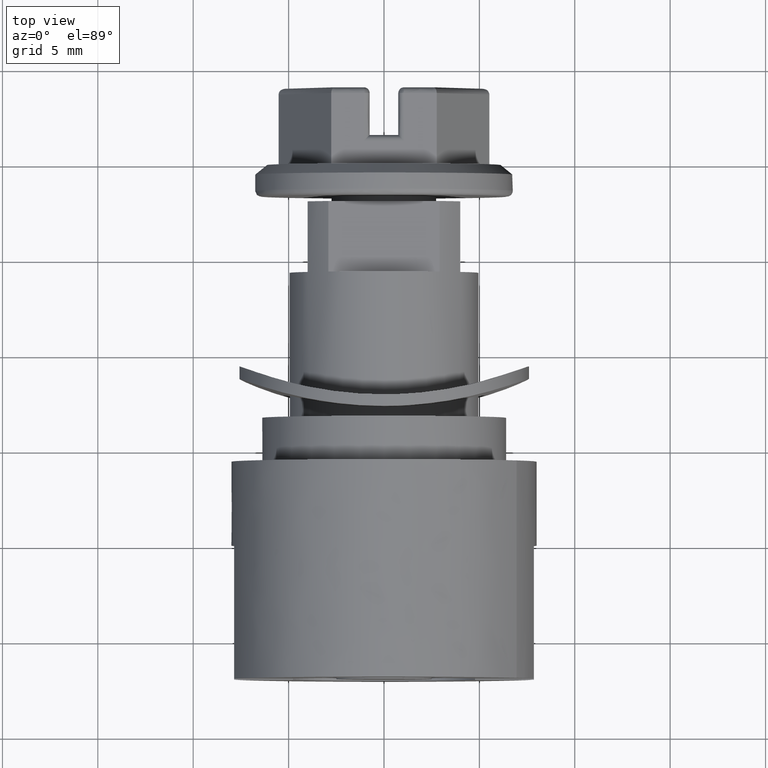
[diagram: clean part render]
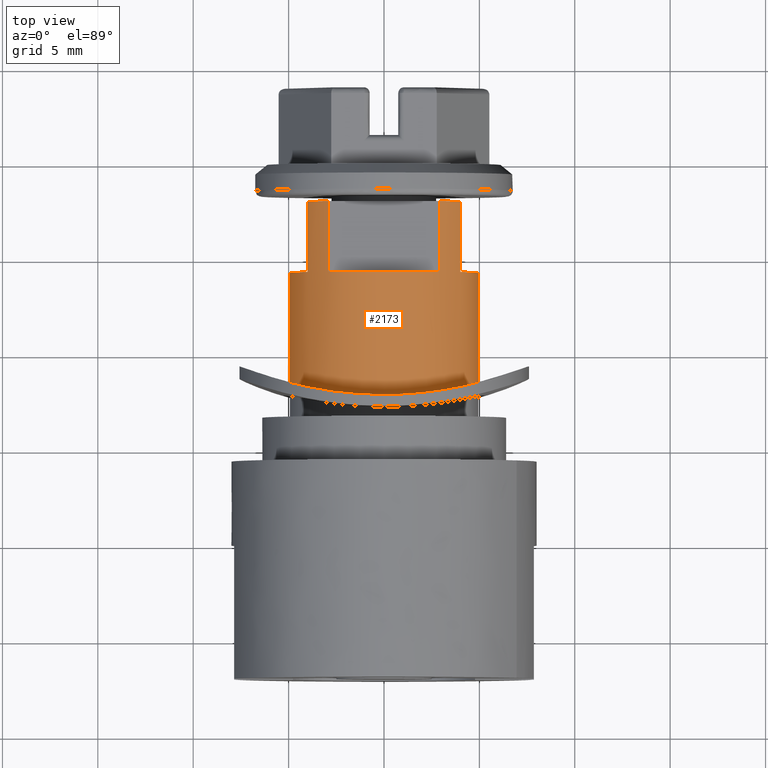
[diagram: same view with one face highlighted and labeled with its STEP entity id]
A machine part, top view. The second image highlights one B-rep face of the part: STEP entity #2173.
In plain terms, the highlighted face is a freeform B-spline surface patch.
Its self-contained STEP definition (entity closure, byte-faithful):
#1953=CARTESIAN_POINT('',(4.948303961655311,18.255000838738340,-0.129575883432199));
#1954=CARTESIAN_POINT('',(5.077879861095710,18.255000838738333,4.818728078223113));
#1955=CARTESIAN_POINT('',(0.129575899440400,18.255000838738340,4.948303977663512));
#1956=CARTESIAN_POINT('',(-4.818728062214912,18.255000838738333,5.077879877103912));
#1957=CARTESIAN_POINT('',(-4.948303961655311,18.255000838738340,0.129575915448601));
#1958=CARTESIAN_POINT('',(4.948303961655311,7.538626520212205,-0.129575883432199));
#1959=CARTESIAN_POINT('',(5.077879861095710,7.538626520212205,4.818728078223113));
#1960=CARTESIAN_POINT('',(0.129575899440400,7.538626520212205,4.948303977663512));
#1961=CARTESIAN_POINT('',(-4.818728062214912,7.538626520212205,5.077879877103912));
#1962=CARTESIAN_POINT('',(-4.948303961655311,7.538626520212205,0.129575915448601));
#1970=(BOUNDED_SURFACE()B_SPLINE_SURFACE(2,1,((#1953,#1958),(#1954,#1959),(#1955,#1960),(#1956,#1961),(#1957,#1962)),.UNSPECIFIED.,.F.,.F.,.U.)B_SPLINE_SURFACE_WITH_KNOTS((3,2,3),(2,2),(0.0,8.201428871487584,16.402857742975169),(0.0,10.716374318526130),.UNSPECIFIED.)GEOMETRIC_REPRESENTATION_ITEM()RATIONAL_B_SPLINE_SURFACE(((1.0,1.0),(0.707106781186548,0.707106781186548),(1.0,1.0),(0.707106781186548,0.707106781186548),(1.0,1.0)))REPRESENTATION_ITEM('')SURFACE());
#1971=CARTESIAN_POINT('',(4.948303969794191,14.300000679224910,-0.129576105088257));
#1972=VERTEX_POINT('',#1971);
#1973=CARTESIAN_POINT('',(4.000000171738055,14.300000679213699,2.915904787557670));
#1974=VERTEX_POINT('',#1973);
#1975=CARTESIAN_POINT('',(4.948303969794191,14.300000679224915,-0.129576105088257));
#1976=CARTESIAN_POINT('',(4.992404200035924,14.300000679213738,1.554537897813703));
#1977=CARTESIAN_POINT('',(4.000000171738055,14.300000679213699,2.915904787557670));
#1985=(BOUNDED_CURVE()B_SPLINE_CURVE(2,(#1975,#1976,#1977),.UNSPECIFIED.,.F.,.U.)B_SPLINE_CURVE_WITH_KNOTS((3,3),(0.479909785443835,1.0),.UNSPECIFIED.)CURVE()GEOMETRIC_REPRESENTATION_ITEM()RATIONAL_B_SPLINE_CURVE((0.904195327630247,0.900184706297299,1.0))REPRESENTATION_ITEM(''));
#1986=EDGE_CURVE('',#1972,#1974,#1985,.T.);
#1987=ORIENTED_EDGE('',*,*,#1986,.T.);
#1988=CARTESIAN_POINT('',(4.000000189989706,18.000000854954251,2.915904800862690));
#1989=VERTEX_POINT('',#1988);
#1990=CARTESIAN_POINT('',(4.000000189989706,18.000000854954251,2.915904800862690));
#1991=CARTESIAN_POINT('',(4.000000171738055,14.300000679213699,2.915904787557670));
#1992=QUASI_UNIFORM_CURVE('',1,(#1990,#1991),.UNSPECIFIED.,.F.,.U.);
#1993=EDGE_CURVE('',#1989,#1974,#1992,.T.);
#1994=ORIENTED_EDGE('',*,*,#1993,.F.);
#1995=CARTESIAN_POINT('',(2.915904800862700,18.000000854954251,4.000000189989706));
#1996=VERTEX_POINT('',#1995);
#1997=CARTESIAN_POINT('',(4.000000189989706,18.000000854954251,2.915904800862690));
#1998=CARTESIAN_POINT('',(3.542920595100084,18.000000854954251,3.542920595100078));
#1999=CARTESIAN_POINT('',(2.915904800862700,18.000000854954251,4.000000189989706));
#2007=(BOUNDED_CURVE()B_SPLINE_CURVE(2,(#1997,#1998,#1999),.UNSPECIFIED.,.F.,.U.)CURVE()GEOMETRIC_REPRESENTATION_ITEM()QUASI_UNIFORM_CURVE()RATIONAL_B_SPLINE_CURVE((1.0,0.987935976671970,1.0))REPRESENTATION_ITEM(''));
#2008=EDGE_CURVE('',#1989,#1996,#2007,.T.);
#2009=ORIENTED_EDGE('',*,*,#2008,.T.);
#2010=CARTESIAN_POINT('',(2.915904800862700,14.300000679213779,4.000000189989706));
#2011=VERTEX_POINT('',#2010);
#2012=CARTESIAN_POINT('',(2.915904800862700,18.000000854954251,4.000000189989706));
#2013=CARTESIAN_POINT('',(2.915904800862700,14.300000679213779,4.000000189989706));
#2014=QUASI_UNIFORM_CURVE('',1,(#2012,#2013),.UNSPECIFIED.,.F.,.U.);
#2015=EDGE_CURVE('',#1996,#2011,#2014,.T.);
#2016=ORIENTED_EDGE('',*,*,#2015,.T.);
#2017=CARTESIAN_POINT('',(-2.915904768471935,14.300000679213699,4.000000189989706));
#2018=VERTEX_POINT('',#2017);
#2019=CARTESIAN_POINT('',(2.915904800862704,14.300000679213779,4.000000189989705));
#2020=CARTESIAN_POINT('',(0.000000016195385,14.300000679213788,6.125625279145473));
#2021=CARTESIAN_POINT('',(-2.915904768471935,14.300000679213699,4.000000189989706));
#2029=(BOUNDED_CURVE()B_SPLINE_CURVE(2,(#2019,#2020,#2021),.UNSPECIFIED.,.F.,.U.)CURVE()GEOMETRIC_REPRESENTATION_ITEM()QUASI_UNIFORM_CURVE()RATIONAL_B_SPLINE_CURVE((1.0,0.808080809638233,1.0))REPRESENTATION_ITEM(''));
#2030=EDGE_CURVE('',#2011,#2018,#2029,.T.);
#2031=ORIENTED_EDGE('',*,*,#2030,.T.);
#2032=CARTESIAN_POINT('',(-2.915904800862695,18.000000854954251,4.000000189989710));
#2033=VERTEX_POINT('',#2032);
#2034=CARTESIAN_POINT('',(-2.915904800862695,18.000000854954251,4.000000189989710));
#2035=CARTESIAN_POINT('',(-2.915904768471935,14.300000679213699,4.000000189989706));
#2036=QUASI_UNIFORM_CURVE('',1,(#2034,#2035),.UNSPECIFIED.,.F.,.U.);
#2037=EDGE_CURVE('',#2033,#2018,#2036,.T.);
#2038=ORIENTED_EDGE('',*,*,#2037,.F.);
#2039=CARTESIAN_POINT('',(-4.000000189989706,18.000000854954251,2.915904800862700));
#2040=VERTEX_POINT('',#2039);
#2041=CARTESIAN_POINT('',(-2.915904800862695,18.000000854954251,4.000000189989710));
#2042=CARTESIAN_POINT('',(-3.542920595100076,18.000000854954251,3.542920595100086));
#2043=CARTESIAN_POINT('',(-4.000000189989706,18.000000854954251,2.915904800862700));
#2051=(BOUNDED_CURVE()B_SPLINE_CURVE(2,(#2041,#2042,#2043),.UNSPECIFIED.,.F.,.U.)CURVE()GEOMETRIC_REPRESENTATION_ITEM()QUASI_UNIFORM_CURVE()RATIONAL_B_SPLINE_CURVE((1.0,0.987935976671970,1.0))REPRESENTATION_ITEM(''));
#2052=EDGE_CURVE('',#2033,#2040,#2051,.T.);
#2053=ORIENTED_EDGE('',*,*,#2052,.T.);
#2054=CARTESIAN_POINT('',(-4.000000189989706,14.300000679213779,2.915904800862700));
#2055=VERTEX_POINT('',#2054);
#2056=CARTESIAN_POINT('',(-4.000000189989706,18.000000854954251,2.915904800862700));
#2057=CARTESIAN_POINT('',(-4.000000189989706,14.300000679213779,2.915904800862700));
#2058=QUASI_UNIFORM_CURVE('',1,(#2056,#2057),.UNSPECIFIED.,.F.,.U.);
#2059=EDGE_CURVE('',#2040,#2055,#2058,.T.);
#2060=ORIENTED_EDGE('',*,*,#2059,.T.);
#2061=CARTESIAN_POINT('',(-4.948303968572731,14.300000679212420,0.129576095033903));
#2062=VERTEX_POINT('',#2061);
#2063=CARTESIAN_POINT('',(-4.000000189989708,14.300000679213779,2.915904800862699));
#2064=CARTESIAN_POINT('',(-4.907956444783188,14.300000679213783,1.670382247931014));
#2065=CARTESIAN_POINT('',(-4.948303968572731,14.300000679212427,0.129576095033903));
#2073=(BOUNDED_CURVE()B_SPLINE_CURVE(2,(#2063,#2064,#2065),.UNSPECIFIED.,.F.,.U.)B_SPLINE_CURVE_WITH_KNOTS((3,3),(0.0,0.479909793967272),.UNSPECIFIED.)CURVE()GEOMETRIC_REPRESENTATION_ITEM()RATIONAL_B_SPLINE_CURVE((1.0,0.907896100147693,0.904195327498791))REPRESENTATION_ITEM(''));
#2074=EDGE_CURVE('',#2055,#2062,#2073,.T.);
#2075=ORIENTED_EDGE('',*,*,#2074,.T.);
#2076=CARTESIAN_POINT('',(-4.948303201718987,8.461080547687736,0.129575662959156));
#2077=VERTEX_POINT('',#2076);
#2078=CARTESIAN_POINT('',(-4.948303968572731,14.300000679212420,0.129576095033903));
#2079=CARTESIAN_POINT('',(-4.948303201718987,8.461080547687736,0.129575662959156));
#2080=QUASI_UNIFORM_CURVE('',1,(#2078,#2079),.UNSPECIFIED.,.F.,.U.);
#2081=EDGE_CURVE('',#2062,#2077,#2080,.T.);
#2082=ORIENTED_EDGE('',*,*,#2081,.T.);
#2083=CARTESIAN_POINT('',(0.002106908709615,7.800001605633595,4.949999936931541));
#2084=VERTEX_POINT('',#2083);
#2085=CARTESIAN_POINT('',(0.002106908709626,7.800001605633595,4.949999936931541));
#2086=CARTESIAN_POINT('',(-0.159836781585293,7.799983518943029,4.950068700277445));
#2087=CARTESIAN_POINT('',(-0.321549620847156,7.802052034160198,4.942209502146624));
#2088=CARTESIAN_POINT('',(-0.644511312247909,7.810330624418504,4.910543156224776));
#2089=CARTESIAN_POINT('',(-0.805934218105372,7.816549775139901,4.886702673231572));
#2090=CARTESIAN_POINT('',(-1.288413013567041,7.841327267399320,4.790621809745519));
#2091=CARTESIAN_POINT('',(-1.598029693020518,7.865469101015597,4.696067119354717));
#2092=CARTESIAN_POINT('',(-2.045384650765805,7.910701396534055,4.510539276797966));
#2093=CARTESIAN_POINT('',(-2.191636715358108,7.927285366914826,4.441357707893350));
#2094=CARTESIAN_POINT('',(-2.406650786973947,7.954126204125300,4.326331129941581));
#2095=CARTESIAN_POINT('',(-2.477761811440409,7.963424798013574,4.286001185601372));
#2096=CARTESIAN_POINT('',(-2.617154338866238,7.982437221691599,4.202334222915133));
#2097=CARTESIAN_POINT('',(-2.685548691406311,7.992163016356677,4.158948492564335));
#2098=CARTESIAN_POINT('',(-3.021154879820035,8.041702692295903,3.934397086132368));
#2099=CARTESIAN_POINT('',(-3.269458746740250,8.084248781599749,3.730594697492308));
#2100=CARTESIAN_POINT('',(-3.554958902858554,8.138163321115881,3.445472611655303));
#2101=CARTESIAN_POINT('',(-3.610803189993061,8.148982494850554,3.386915246752525));
#2102=CARTESIAN_POINT('',(-3.719940650654996,8.170617148917646,3.266670494142844));
#2103=CARTESIAN_POINT('',(-3.773203069932234,8.181428047346623,3.204996049699162));
#2104=CARTESIAN_POINT('',(-3.927443530711620,8.213387781730935,3.017271169352962));
#2105=CARTESIAN_POINT('',(-4.023493729993890,8.234181939289211,2.887878380689078));
#2106=CARTESIAN_POINT('',(-4.291833763400233,8.294177403930830,2.487173088666715));
#2107=CARTESIAN_POINT('',(-4.444518425968176,8.331009250991210,2.203462534706201));
#2108=CARTESIAN_POINT('',(-4.601269973303426,8.370180018261905,1.826875001369820));
#2109=CARTESIAN_POINT('',(-4.630837050746878,8.377654387158888,1.750562153075253));
#2110=CARTESIAN_POINT('',(-4.685858423733516,8.391686901553079,1.597451241876599));
#2111=CARTESIAN_POINT('',(-4.711400796435094,8.398266997320439,1.520447231684786));
#2112=CARTESIAN_POINT('',(-4.782207585331451,8.416642384654995,1.288104584776451));
#2113=CARTESIAN_POINT('',(-4.861123219660128,8.437502505181863,0.974771956408323));
#2114=CARTESIAN_POINT('',(-4.909258523244627,8.450496595715251,0.654365973837506));
#2115=CARTESIAN_POINT('',(-4.933551458697117,8.457072735182200,0.411339323731882));
#2116=CARTESIAN_POINT('',(-4.939677423617547,8.458736514237899,0.329875971577381));
#2117=CARTESIAN_POINT('',(-4.945764864968831,8.460390980682725,0.208499343619143));
#2118=CARTESIAN_POINT('',(-4.947269601855153,8.460800204344873,0.169020819456784));
#2119=CARTESIAN_POINT('',(-4.948303201718987,8.461080547687736,0.129575662959156));
#2120=B_SPLINE_CURVE_WITH_KNOTS('',3,(#2085,#2086,#2087,#2088,#2089,#2090,#2091,#2092,#2093,#2094,#2095,#2096,#2097,#2098,#2099,#2100,#2101,#2102,#2103,#2104,#2105,#2106,#2107,#2108,#2109,#2110,#2111,#2112,#2113,#2114,#2115,#2116,#2117,#2118,#2119),.UNSPECIFIED.,.F.,.U.,(4,2,2,2,2,2,2,2,2,2,2,2,2,2,1,2,2,4),(0.500000000000000,0.515625000000000,0.531250000000000,0.562500000000000,0.578125000000000,0.585937500000000,0.593750000000000,0.625000000000000,0.632812500000000,0.640625000000000,0.656250000000000,0.687500000000000,0.695312500000000,0.703125000000000,0.718750000000000,0.734375000000000,0.742187500000000,0.745949157478613),.UNSPECIFIED.);
#2121=EDGE_CURVE('',#2084,#2077,#2120,.T.);
#2122=ORIENTED_EDGE('',*,*,#2121,.F.);
#2123=CARTESIAN_POINT('',(4.948309888105410,8.461081540190564,-0.129576037672904));
#2124=VERTEX_POINT('',#2123);
#2125=CARTESIAN_POINT('',(4.948309888105410,8.461081540190564,-0.129576037672904));
#2126=CARTESIAN_POINT('',(4.949405492457108,8.461381551832519,-0.087480472901513));
#2127=CARTESIAN_POINT('',(4.949966274923710,8.461535680570922,-0.045346063347642));
#2128=CARTESIAN_POINT('',(4.950097408039866,8.461571335498473,0.159035048547071));
#2129=CARTESIAN_POINT('',(4.942249585458663,8.459429650270133,0.321820537793231));
#2130=CARTESIAN_POINT('',(4.910064732445165,8.450715750840201,0.648587931329407));
#2131=CARTESIAN_POINT('',(4.885980734849976,8.444213087908009,0.809895877701690));
#2132=CARTESIAN_POINT('',(4.790771558013443,8.418838967431707,1.286902515227808));
#2133=CARTESIAN_POINT('',(4.696867157240828,8.394086791785520,1.596172540327379));
#2134=CARTESIAN_POINT('',(4.541022267716904,8.355121899002695,1.971850879462878));
#2135=CARTESIAN_POINT('',(4.507811820316185,8.346903568696906,2.046638929107209));
#2136=CARTESIAN_POINT('',(4.438030969304013,8.329858383816575,2.193850771601389));
#2137=CARTESIAN_POINT('',(4.401468300404363,8.321032837040015,2.266293616512028));
#2138=CARTESIAN_POINT('',(4.286861010409533,8.293763695463042,2.480215261452154));
#2139=CARTESIAN_POINT('',(4.203909470163738,8.274528351747037,2.618295551700107));
#2140=CARTESIAN_POINT('',(4.025117726568769,8.234537937929707,2.885612110171247));
#2141=CARTESIAN_POINT('',(3.929277418307432,8.213781924469144,3.014848169049222));
#2142=CARTESIAN_POINT('',(3.775705865441852,8.181940935220997,3.202036396546920));
#2143=CARTESIAN_POINT('',(3.722877093708823,8.171209427631764,3.263319438400493));
#2144=CARTESIAN_POINT('',(3.613880114102060,8.149584151933565,3.383628202075905));
#2145=CARTESIAN_POINT('',(3.557688101771825,8.138687755746140,3.442658223966408));
#2146=CARTESIAN_POINT('',(3.271378644050114,8.084579168306023,3.729008983097799));
#2147=CARTESIAN_POINT('',(3.023069834980447,8.042029432938874,3.932833697574810));
#2148=CARTESIAN_POINT('',(2.621911192352251,7.982748197349902,4.201664537491586));
#2149=CARTESIAN_POINT('',(2.483374101287499,7.963742415221260,4.285077099785847));
#2150=CARTESIAN_POINT('',(2.268034461871089,7.936804355632128,4.400585137865814));
#2151=CARTESIAN_POINT('',(2.195096043500775,7.928102486868643,4.437414353016781));
#2152=CARTESIAN_POINT('',(2.048329010595409,7.911477059086598,4.507043599697258));
#2153=CARTESIAN_POINT('',(1.974306942842487,7.903528806154518,4.539949870315970));
#2154=CARTESIAN_POINT('',(1.601039026108191,7.865719321940152,4.695076659284314));
#2155=CARTESIAN_POINT('',(1.292409459872442,7.841648176652763,4.789360792036903));
#2156=CARTESIAN_POINT('',(0.893765957203345,7.821032991394148,4.869321938376944));
#2157=CARTESIAN_POINT('',(0.813388799506564,7.817384170307050,4.883401976786775));
#2158=CARTESIAN_POINT('',(0.651305464813326,7.811082257139397,4.907648895140703));
#2159=CARTESIAN_POINT('',(0.569840710342165,7.808441592326106,4.917768052449462));
#2160=CARTESIAN_POINT('',(0.326224947998057,7.802124380922463,4.941934453768712));
#2161=CARTESIAN_POINT('',(0.164050505338134,7.800019692324161,4.949931176023402));
#2162=CARTESIAN_POINT('',(0.002106908709615,7.800001605633595,4.949999936931541));
#2163=B_SPLINE_CURVE_WITH_KNOTS('',3,(#2125,#2126,#2127,#2128,#2129,#2130,#2131,#2132,#2133,#2134,#2135,#2136,#2137,#2138,#2139,#2140,#2141,#2142,#2143,#2144,#2145,#2146,#2147,#2148,#2149,#2150,#2151,#2152,#2153,#2154,#2155,#2156,#2157,#2158,#2159,#2160,#2161,#2162),.UNSPECIFIED.,.F.,.U.,(4,2,2,2,2,2,2,2,2,2,2,2,2,2,2,2,2,2,4),(0.245937583036892,0.250000000000000,0.265625000000000,0.281250000000000,0.312500000000000,0.320312500000000,0.328125000000000,0.343750000000000,0.359375000000000,0.367187500000000,0.375000000000000,0.406250000000000,0.421875000000000,0.429687500000000,0.437500000000000,0.468750000000000,0.476562500000000,0.484375000000000,0.500000000000000),.UNSPECIFIED.);
#2164=EDGE_CURVE('',#2124,#2084,#2163,.T.);
#2165=ORIENTED_EDGE('',*,*,#2164,.F.);
#2166=CARTESIAN_POINT('',(4.948303969794191,14.300000679224910,-0.129576105088257));
#2167=CARTESIAN_POINT('',(4.948309888105410,8.461081540190564,-0.129576037672904));
#2168=QUASI_UNIFORM_CURVE('',1,(#2166,#2167),.UNSPECIFIED.,.F.,.U.);
#2169=EDGE_CURVE('',#1972,#2124,#2168,.T.);
#2170=ORIENTED_EDGE('',*,*,#2169,.F.);
#2171=EDGE_LOOP('',(#1987,#1994,#2009,#2016,#2031,#2038,#2053,#2060,#2075,#2082,#2122,#2165,#2170));
#2172=FACE_OUTER_BOUND('',#2171,.T.);
#2173=ADVANCED_FACE('',(#2172),#1970,.T.);